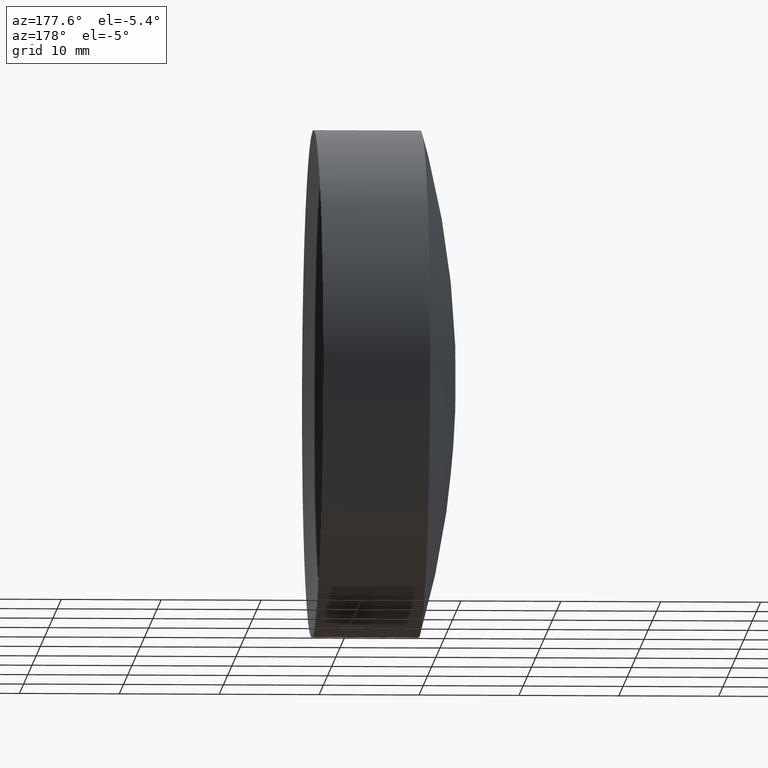
[diagram: clean part render]
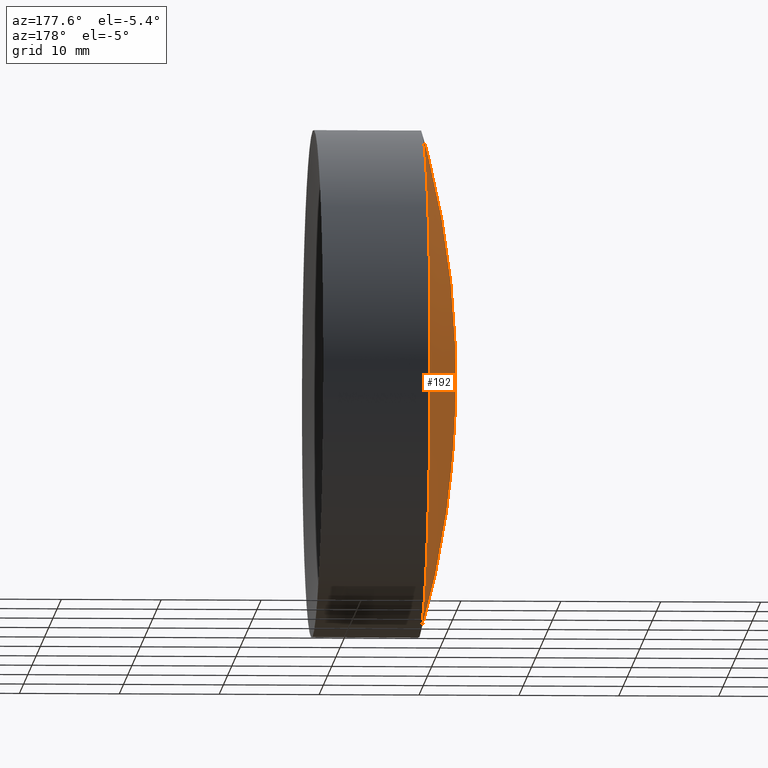
[diagram: same view with one face highlighted and labeled with its STEP entity id]
A machine part, auxiliary view. The second image highlights one B-rep face of the part: STEP entity #192.
In plain terms, the highlighted spherical surface has radius 91.62 mm.
Its self-contained STEP definition (entity closure, byte-faithful):
#2 = EDGE_CURVE ( 'NONE', #286, #346, #106, .T. ) ;
#30 = CARTESIAN_POINT ( 'NONE',  ( 270.0737564105605800, 0.0000000000000000000, 2.915157788928457200E-014 ) ) ;
#59 = DIRECTION ( 'NONE',  ( -0.0000000000000000000, -1.000000000000000000, -0.0000000000000000000 ) ) ;
#75 = AXIS2_PLACEMENT_3D ( 'NONE', #310, #186, #244 ) ;
#83 = CIRCLE ( 'NONE', #339, 91.62000000000000500 ) ;
#84 = DIRECTION ( 'NONE',  ( 0.0000000000000000000, 0.0000000000000000000, 1.000000000000000000 ) ) ;
#106 = CIRCLE ( 'NONE', #75, 91.62000000000000500 ) ;
#114 = CARTESIAN_POINT ( 'NONE',  ( 182.0449861135718700, 0.0000000000000000000, 0.0000000000000000000 ) ) ;
#128 = SPHERICAL_SURFACE ( 'NONE', #243, 91.62000000000000500 ) ;
#140 = DIRECTION ( 'NONE',  ( 0.0000000000000000000, 1.224646799147353200E-016, -1.000000000000000000 ) ) ;
#142 = CARTESIAN_POINT ( 'NONE',  ( 182.0449861135718400, 0.0000000000000000000, -25.39999999999998100 ) ) ;
#149 = ORIENTED_EDGE ( 'NONE', *, *, #288, .F. ) ;
#166 = CARTESIAN_POINT ( 'NONE',  ( 270.0737564105605800, 0.0000000000000000000, 2.915157788928457200E-014 ) ) ;
#186 = DIRECTION ( 'NONE',  ( 0.0000000000000000000, 1.000000000000000000, -0.0000000000000000000 ) ) ;
#192 = ADVANCED_FACE ( 'NONE', ( #211 ), #128, .T. ) ;
#193 = ORIENTED_EDGE ( 'NONE', *, *, #2, .T. ) ;
#196 = CARTESIAN_POINT ( 'NONE',  ( 178.4537564105605700, 0.0000000000000000000, 2.354147090239054500E-014 ) ) ;
#198 = EDGE_CURVE ( 'NONE', #249, #286, #337, .T. ) ;
#206 = AXIS2_PLACEMENT_3D ( 'NONE', #114, #283, #84 ) ;
#211 = FACE_OUTER_BOUND ( 'NONE', #320, .T. ) ;
#243 = AXIS2_PLACEMENT_3D ( 'NONE', #30, #59, #305 ) ;
#244 = DIRECTION ( 'NONE',  ( 0.0000000000000000000, 0.0000000000000000000, 1.000000000000000000 ) ) ;
#249 = VERTEX_POINT ( 'NONE', #303 ) ;
#283 = DIRECTION ( 'NONE',  ( -1.000000000000000000, -0.0000000000000000000, -0.0000000000000000000 ) ) ;
#286 = VERTEX_POINT ( 'NONE', #142 ) ;
#288 = EDGE_CURVE ( 'NONE', #249, #346, #83, .T. ) ;
#300 = ORIENTED_EDGE ( 'NONE', *, *, #198, .T. ) ;
#303 = CARTESIAN_POINT ( 'NONE',  ( 182.0449861135718400, -3.110602869834274900E-015, 25.40000000000000900 ) ) ;
#305 = DIRECTION ( 'NONE',  ( 0.0000000000000000000, 0.0000000000000000000, -1.000000000000000000 ) ) ;
#310 = CARTESIAN_POINT ( 'NONE',  ( 270.0737564105605800, 0.0000000000000000000, 2.915157788928457200E-014 ) ) ;
#320 = EDGE_LOOP ( 'NONE', ( #149, #300, #193 ) ) ;
#321 = DIRECTION ( 'NONE',  ( 0.0000000000000000000, -1.000000000000000000, -1.224646799147353200E-016 ) ) ;
#337 = CIRCLE ( 'NONE', #206, 25.40000000000002700 ) ;
#339 = AXIS2_PLACEMENT_3D ( 'NONE', #166, #321, #140 ) ;
#346 = VERTEX_POINT ( 'NONE', #196 ) ;